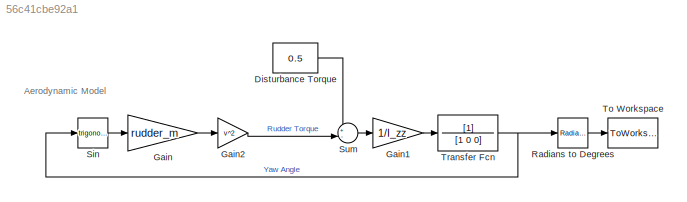
MODEL slx_56c41cbe92a1
KIND model
CONFIG AbsTol = auto
CONFIG EnableMultiTasking = off
CONFIG FixedStep = auto
CONFIG MaxStep = auto
CONFIG MinStep = auto
CONFIG RelTol = 1e-3
CONFIG SampleTimeConstraint = Unconstrained
CONFIG SolverName = VariableStepAuto
CONFIG StartTime = 0.0
CONFIG StopTime = 60
BLOCK [Constant] Disturbance Torque
  Value = 0.5
BLOCK [Gain] Gain
  Gain = rudder_m
BLOCK [Gain] Gain1
  Gain = 1/I_zz
BLOCK [Gain] Gain2
  Gain = v^2
BLOCK [Reference] Radians to Degrees  REF=simulink_extras/Transformations/Radians
to Degrees
  Ports = [1, 1]
  SourceBlock = simulink_extras/Transformations/Radians\nto Degrees
  SourceProductBaseCode = SL
  SourceType = RadiansToDegrees
BLOCK [Trigonometry] Sin
  Ports = [1, 1]
BLOCK [Sum] Sum
  Inputs = +-|
  Ports = [2, 1]
BLOCK [ToWorkspace] To Workspace
  FixptAsFi = on
  MaxDataPoints = inf
  Ports = [1]
  SampleTime = -1
  SaveFormat = Timeseries
  VariableName = yaw
BLOCK [TransferFcn] Transfer Fcn
  Denominator = [1 0 0]
ANNOTATION (root): Aerodynamic Model
LINE Disturbance Torque:1 -> Sum:1
LINE Gain1:1 -> Transfer Fcn:1
LINE Gain2:1 -> Sum:2
LINE Gain:1 -> Gain2:1
LINE Radians to Degrees:1 -> To Workspace:1
LINE Sin:1 -> Gain:1
LINE Sum:1 -> Gain1:1
NET Transfer Fcn:1 -> Radians to Degrees:1, Sin:1
note: NET lines group one-source signal fan-out (src -> all destinations, sorted); 1:1 wires keep LINE
